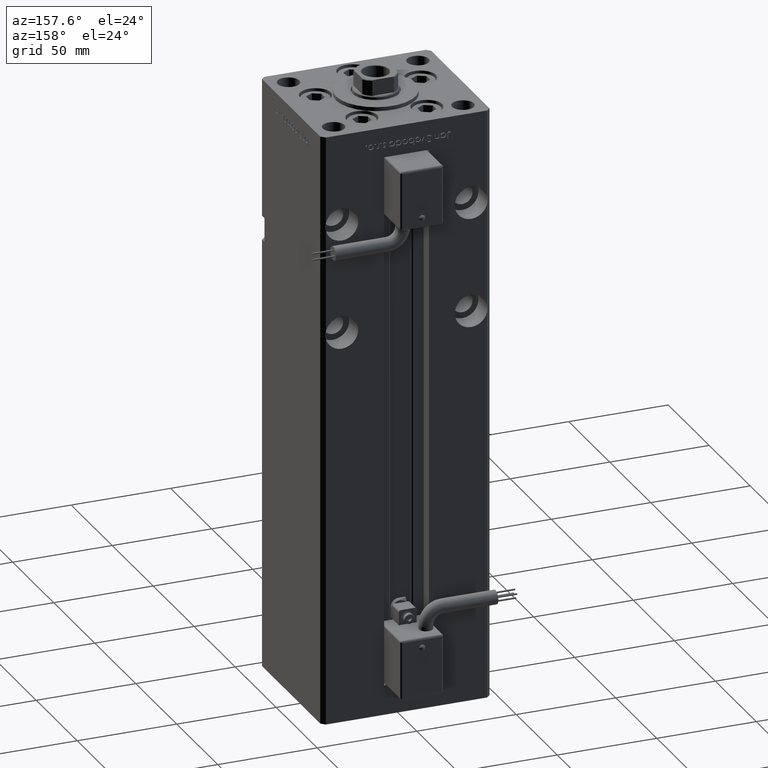
[diagram: clean part render]
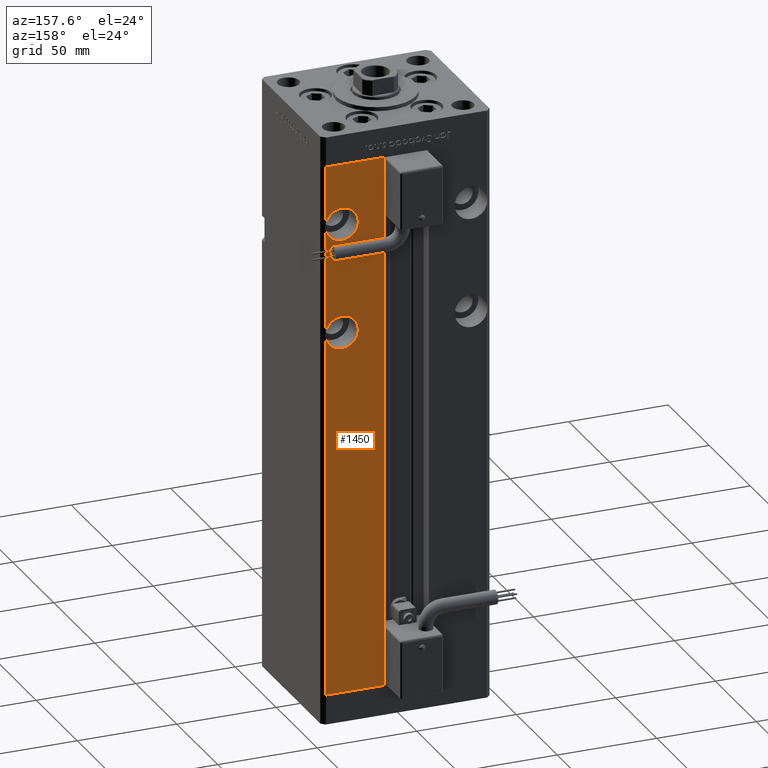
[diagram: same view with one face highlighted and labeled with its STEP entity id]
A machine part, auxiliary view. The second image highlights one B-rep face of the part: STEP entity #1450.
In plain terms, the highlighted planar face has unit normal (0, -1, 0).
Its self-contained STEP definition (entity closure, byte-faithful):
#1450 = ADVANCED_FACE ( 'NONE', ( #26389 ), #34387, .F. ) ;
#2215 = CARTESIAN_POINT ( 'NONE',  ( 40.50000000000000711, 37.50000000000000000, 235.9844355629253698 ) ) ;
#3260 = VERTEX_POINT ( 'NONE', #48242 ) ;
#3338 = DIRECTION ( 'NONE',  ( -0.000000000000000000, -0.000000000000000000, -1.000000000000000000 ) ) ;
#3378 = CARTESIAN_POINT ( 'NONE',  ( 32.50000000000000000, 37.50000000000000000, 183.0000000000000284 ) ) ;
#3516 = ORIENTED_EDGE ( 'NONE', *, *, #36169, .F. ) ;
#3616 = VERTEX_POINT ( 'NONE', #44205 ) ;
#3986 = VECTOR ( 'NONE', #23818, 1000.000000000000000 ) ;
#4439 = CARTESIAN_POINT ( 'NONE',  ( 32.50000000000000000, 37.50000000000000000, 238.0000000000000284 ) ) ;
#4973 = DIRECTION ( 'NONE',  ( -0.000000000000000000, -0.000000000000000000, 1.000000000000000000 ) ) ;
#5031 = AXIS2_PLACEMENT_3D ( 'NONE', #3378, #38038, #55395 ) ;
#5580 = ORIENTED_EDGE ( 'NONE', *, *, #33147, .F. ) ;
#5908 = EDGE_CURVE ( 'NONE', #3260, #40103, #36897, .T. ) ;
#6099 = LINE ( 'NONE', #22858, #31491 ) ;
#6317 = ORIENTED_EDGE ( 'NONE', *, *, #9151, .F. ) ;
#6327 = ORIENTED_EDGE ( 'NONE', *, *, #19186, .T. ) ;
#8346 = AXIS2_PLACEMENT_3D ( 'NONE', #51460, #34942, #35229 ) ;
#8709 = EDGE_CURVE ( 'NONE', #10786, #40698, #39419, .T. ) ;
#9099 = ORIENTED_EDGE ( 'NONE', *, *, #8709, .T. ) ;
#9151 = EDGE_CURVE ( 'NONE', #39518, #36985, #15918, .T. ) ;
#9716 = CIRCLE ( 'NONE', #21520, 8.250000000000007105 ) ;
#10648 = DIRECTION ( 'NONE',  ( 0.000000000000000000, 0.000000000000000000, -1.000000000000000000 ) ) ;
#10786 = VERTEX_POINT ( 'NONE', #44884 ) ;
#10996 = EDGE_CURVE ( 'NONE', #3616, #32793, #35900, .T. ) ;
#11191 = DIRECTION ( 'NONE',  ( 0.000000000000000000, 0.000000000000000000, -1.000000000000000000 ) ) ;
#11596 = CIRCLE ( 'NONE', #51507, 8.250000000000007105 ) ;
#12331 = CIRCLE ( 'NONE', #45894, 8.250000000000007105 ) ;
#12666 = ORIENTED_EDGE ( 'NONE', *, *, #10996, .F. ) ;
#13067 = CARTESIAN_POINT ( 'NONE',  ( 40.50000000000000711, 37.50000000000000000, 240.0155644370746586 ) ) ;
#14086 = DIRECTION ( 'NONE',  ( 0.000000000000000000, 1.000000000000000000, -0.000000000000000000 ) ) ;
#14601 = CARTESIAN_POINT ( 'NONE',  ( 32.50000000000000000, 37.50000000000000000, 238.0000000000000284 ) ) ;
#14845 = ORIENTED_EDGE ( 'NONE', *, *, #38282, .F. ) ;
#14938 = VECTOR ( 'NONE', #25769, 1000.000000000000000 ) ;
#15189 = CARTESIAN_POINT ( 'NONE',  ( 32.50000000000000000, 37.50000000000000000, 191.2500000000000284 ) ) ;
#15215 = CARTESIAN_POINT ( 'NONE',  ( 32.50000000000000000, 37.50000000000000000, 183.0000000000000284 ) ) ;
#15593 = CARTESIAN_POINT ( 'NONE',  ( -11.24999999999999822, 37.50000000000000000, 268.5000000000000000 ) ) ;
#15694 = DIRECTION ( 'NONE',  ( 0.000000000000000000, 1.000000000000000000, 0.000000000000000000 ) ) ;
#15918 = CIRCLE ( 'NONE', #29494, 8.250000000000007105 ) ;
#17973 = LINE ( 'NONE', #35296, #22851 ) ;
#18419 = CARTESIAN_POINT ( 'NONE',  ( 40.50000000000000711, 37.50000000000000000, 185.0155644370746302 ) ) ;
#19186 = EDGE_CURVE ( 'NONE', #31402, #52067, #17973, .T. ) ;
#21520 = AXIS2_PLACEMENT_3D ( 'NONE', #32498, #50126, #11191 ) ;
#21638 = ORIENTED_EDGE ( 'NONE', *, *, #30586, .T. ) ;
#22474 = ORIENTED_EDGE ( 'NONE', *, *, #5908, .T. ) ;
#22851 = VECTOR ( 'NONE', #52636, 1000.000000000000000 ) ;
#22858 = CARTESIAN_POINT ( 'NONE',  ( 11.24999999999999822, 37.50000000000000000, 0.000000000000000000 ) ) ;
#23818 = DIRECTION ( 'NONE',  ( 1.000000000000000000, 0.000000000000000000, 0.000000000000000000 ) ) ;
#24470 = CIRCLE ( 'NONE', #56256, 8.250000000000007105 ) ;
#25769 = DIRECTION ( 'NONE',  ( -1.000000000000000000, 0.000000000000000000, 0.000000000000000000 ) ) ;
#26389 = FACE_OUTER_BOUND ( 'NONE', #50084, .T. ) ;
#27305 = EDGE_CURVE ( 'NONE', #40103, #42487, #52910, .T. ) ;
#27951 = VERTEX_POINT ( 'NONE', #15189 ) ;
#29078 = ORIENTED_EDGE ( 'NONE', *, *, #36816, .T. ) ;
#29494 = AXIS2_PLACEMENT_3D ( 'NONE', #14601, #40473, #39911 ) ;
#30586 = EDGE_CURVE ( 'NONE', #3616, #10786, #51635, .T. ) ;
#31402 = VERTEX_POINT ( 'NONE', #2215 ) ;
#31491 = VECTOR ( 'NONE', #4973, 1000.000000000000000 ) ;
#32498 = CARTESIAN_POINT ( 'NONE',  ( 32.50000000000000000, 37.50000000000000000, 183.0000000000000284 ) ) ;
#32621 = CARTESIAN_POINT ( 'NONE',  ( 40.50000000000000711, 37.50000000000000000, 268.5000000000000000 ) ) ;
#32793 = VERTEX_POINT ( 'NONE', #33222 ) ;
#33147 = EDGE_CURVE ( 'NONE', #27951, #52067, #12331, .T. ) ;
#33222 = CARTESIAN_POINT ( 'NONE',  ( 32.50000000000000000, 37.50000000000000000, 174.7500000000000284 ) ) ;
#34387 = PLANE ( 'NONE',  #8346 ) ;
#34942 = DIRECTION ( 'NONE',  ( 0.000000000000000000, -1.000000000000000000, 0.000000000000000000 ) ) ;
#35229 = DIRECTION ( 'NONE',  ( 0.000000000000000000, -0.000000000000000000, -1.000000000000000000 ) ) ;
#35296 = CARTESIAN_POINT ( 'NONE',  ( 40.50000000000000711, 37.50000000000000000, 268.5000000000000000 ) ) ;
#35900 = CIRCLE ( 'NONE', #5031, 8.250000000000007105 ) ;
#36169 = EDGE_CURVE ( 'NONE', #32793, #27951, #9716, .T. ) ;
#36394 = CARTESIAN_POINT ( 'NONE',  ( 40.50000000000000711, 37.50000000000000000, 268.5000000000000000 ) ) ;
#36509 = CARTESIAN_POINT ( 'NONE',  ( 11.24999999999999822, 37.50000000000000000, 0.000000000000000000 ) ) ;
#36816 = EDGE_CURVE ( 'NONE', #40698, #3260, #6099, .T. ) ;
#36897 = LINE ( 'NONE', #15593, #3986 ) ;
#36985 = VERTEX_POINT ( 'NONE', #39028 ) ;
#37269 = CARTESIAN_POINT ( 'NONE',  ( 32.50000000000000000, 37.50000000000000000, 238.0000000000000284 ) ) ;
#38038 = DIRECTION ( 'NONE',  ( 0.000000000000000000, 1.000000000000000000, -0.000000000000000000 ) ) ;
#38214 = ORIENTED_EDGE ( 'NONE', *, *, #27305, .T. ) ;
#38282 = EDGE_CURVE ( 'NONE', #36985, #42487, #11596, .T. ) ;
#39028 = CARTESIAN_POINT ( 'NONE',  ( 32.50000000000000000, 37.50000000000000000, 246.2500000000000284 ) ) ;
#39128 = CARTESIAN_POINT ( 'NONE',  ( -11.24999999999999822, 37.50000000000000000, 0.000000000000000000 ) ) ;
#39419 = LINE ( 'NONE', #39128, #14938 ) ;
#39518 = VERTEX_POINT ( 'NONE', #45837 ) ;
#39911 = DIRECTION ( 'NONE',  ( 0.000000000000000000, 0.000000000000000000, 1.000000000000000000 ) ) ;
#40103 = VERTEX_POINT ( 'NONE', #32621 ) ;
#40473 = DIRECTION ( 'NONE',  ( 0.000000000000000000, 1.000000000000000000, 0.000000000000000000 ) ) ;
#40512 = VECTOR ( 'NONE', #3338, 1000.000000000000000 ) ;
#40698 = VERTEX_POINT ( 'NONE', #36509 ) ;
#42487 = VERTEX_POINT ( 'NONE', #13067 ) ;
#44205 = CARTESIAN_POINT ( 'NONE',  ( 40.50000000000000711, 37.50000000000000000, 180.9844355629254267 ) ) ;
#44393 = EDGE_CURVE ( 'NONE', #31402, #39518, #24470, .T. ) ;
#44884 = CARTESIAN_POINT ( 'NONE',  ( 40.50000000000000711, 37.50000000000000000, 0.000000000000000000 ) ) ;
#45837 = CARTESIAN_POINT ( 'NONE',  ( 32.50000000000000000, 37.50000000000000000, 229.7500000000000000 ) ) ;
#45894 = AXIS2_PLACEMENT_3D ( 'NONE', #15215, #14086, #10648 ) ;
#48044 = ORIENTED_EDGE ( 'NONE', *, *, #44393, .F. ) ;
#48242 = CARTESIAN_POINT ( 'NONE',  ( 11.24999999999999112, 37.50000000000000000, 268.5000000000000000 ) ) ;
#48758 = DIRECTION ( 'NONE',  ( 0.000000000000000000, 1.000000000000000000, 0.000000000000000000 ) ) ;
#50084 = EDGE_LOOP ( 'NONE', ( #6327, #5580, #3516, #12666, #21638, #9099, #29078, #22474, #38214, #14845, #6317, #48044 ) ) ;
#50126 = DIRECTION ( 'NONE',  ( 0.000000000000000000, 1.000000000000000000, -0.000000000000000000 ) ) ;
#50353 = DIRECTION ( 'NONE',  ( 0.000000000000000000, 0.000000000000000000, 1.000000000000000000 ) ) ;
#51460 = CARTESIAN_POINT ( 'NONE',  ( -11.24999999999999822, 37.50000000000000000, 268.5000000000000000 ) ) ;
#51507 = AXIS2_PLACEMENT_3D ( 'NONE', #4439, #48758, #53030 ) ;
#51635 = LINE ( 'NONE', #55918, #40512 ) ;
#52067 = VERTEX_POINT ( 'NONE', #18419 ) ;
#52636 = DIRECTION ( 'NONE',  ( -0.000000000000000000, -0.000000000000000000, -1.000000000000000000 ) ) ;
#52910 = LINE ( 'NONE', #36394, #53090 ) ;
#53030 = DIRECTION ( 'NONE',  ( 0.000000000000000000, 0.000000000000000000, 1.000000000000000000 ) ) ;
#53090 = VECTOR ( 'NONE', #53198, 1000.000000000000000 ) ;
#53198 = DIRECTION ( 'NONE',  ( -0.000000000000000000, -0.000000000000000000, -1.000000000000000000 ) ) ;
#55395 = DIRECTION ( 'NONE',  ( 0.000000000000000000, 0.000000000000000000, -1.000000000000000000 ) ) ;
#55918 = CARTESIAN_POINT ( 'NONE',  ( 40.50000000000000711, 37.50000000000000000, 268.5000000000000000 ) ) ;
#56256 = AXIS2_PLACEMENT_3D ( 'NONE', #37269, #15694, #50353 ) ;